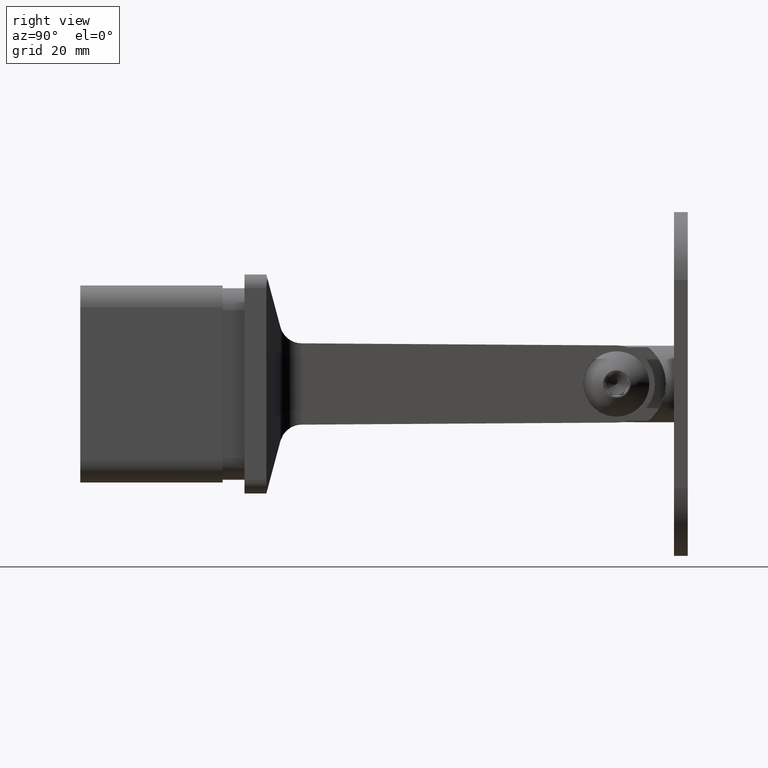
[diagram: clean part render]
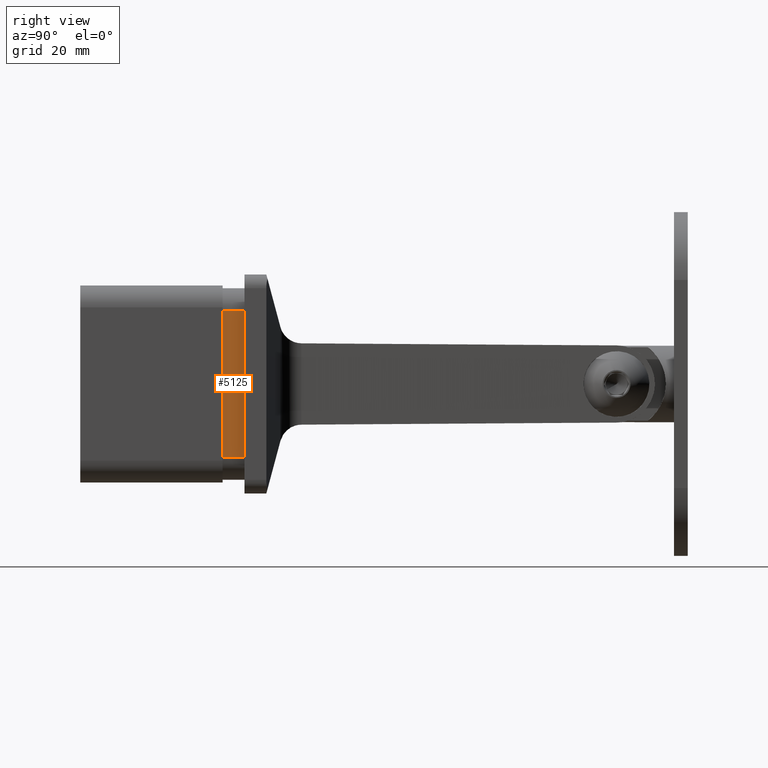
[diagram: same view with one face highlighted and labeled with its STEP entity id]
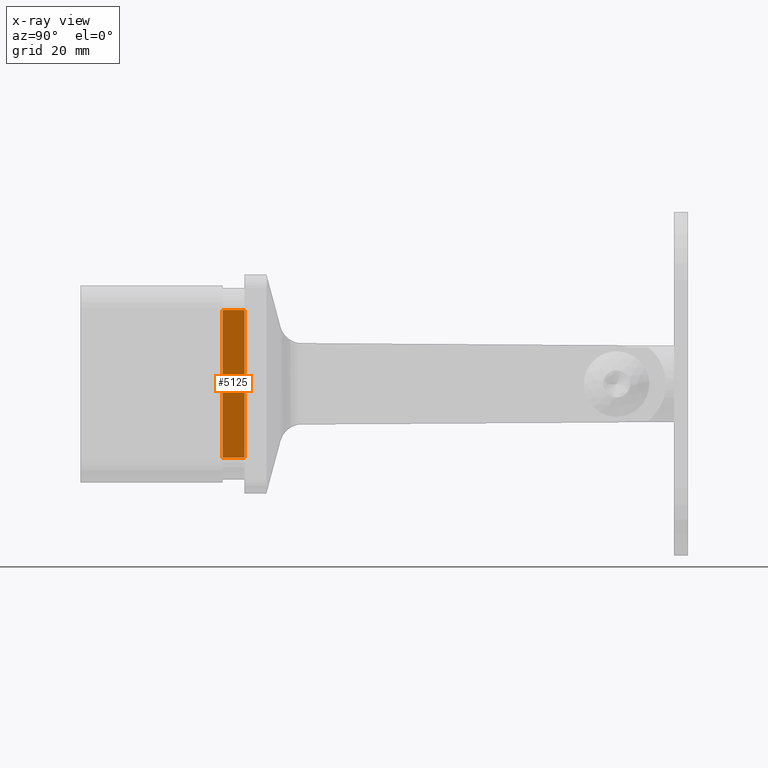
[diagram: x-ray of the same camera — body ghosted, the highlighted face saturated]
A machine part, right view. The second image highlights one B-rep face of the part: STEP entity #5125.
The next image is the same camera in x-ray: the body ghosted, the highlighted face saturated — about 0% of this face is hidden behind the body in this view.
In plain terms, the highlighted planar face has unit normal (-1, 0, 0).
Its self-contained STEP definition (entity closure, byte-faithful):
#188 = EDGE_LOOP ( 'NONE', ( #299, #14790, #12271, #11589 ) ) ;
#299 = ORIENTED_EDGE ( 'NONE', *, *, #8229, .F. ) ;
#420 = VERTEX_POINT ( 'NONE', #1144 ) ;
#468 = LINE ( 'NONE', #7176, #10336 ) ;
#780 = VERTEX_POINT ( 'NONE', #8649 ) ;
#1043 = AXIS2_PLACEMENT_3D ( 'NONE', #4888, #11399, #10453 ) ;
#1144 = CARTESIAN_POINT ( 'NONE',  ( 17.49999999999999645, -4.000000000000000000, -13.49999999999999822 ) ) ;
#1166 = LINE ( 'NONE', #6753, #10658 ) ;
#2328 = VERTEX_POINT ( 'NONE', #11995 ) ;
#4888 = CARTESIAN_POINT ( 'NONE',  ( 17.49999999999999645, -4.000000000000000000, 17.50000000000000711 ) ) ;
#5125 = ADVANCED_FACE ( 'NONE', ( #7493 ), #13083, .F. ) ;
#5514 = CARTESIAN_POINT ( 'NONE',  ( 17.49999999999999645, -4.000000000000000000, -13.49999999999999822 ) ) ;
#5808 = EDGE_CURVE ( 'NONE', #2328, #12809, #468, .T. ) ;
#6146 = VECTOR ( 'NONE', #7784, 1000.000000000000000 ) ;
#6459 = CARTESIAN_POINT ( 'NONE',  ( 17.49999999999999645, -4.000000000000000000, 17.50000000000000711 ) ) ;
#6753 = CARTESIAN_POINT ( 'NONE',  ( 17.49999999999999645, -4.000000000000000000, 13.50000000000000888 ) ) ;
#7176 = CARTESIAN_POINT ( 'NONE',  ( 17.49999999999999645, -0.000000000000000000, 17.50000000000000711 ) ) ;
#7493 = FACE_OUTER_BOUND ( 'NONE', #188, .T. ) ;
#7784 = DIRECTION ( 'NONE',  ( 0.000000000000000000, 1.000000000000000000, 0.000000000000000000 ) ) ;
#7785 = CARTESIAN_POINT ( 'NONE',  ( 17.49999999999999645, 0.000000000000000000, 13.50000000000000888 ) ) ;
#7878 = EDGE_CURVE ( 'NONE', #12809, #780, #1166, .T. ) ;
#8229 = EDGE_CURVE ( 'NONE', #420, #780, #10805, .T. ) ;
#8649 = CARTESIAN_POINT ( 'NONE',  ( 17.49999999999999645, -4.000000000000000000, 13.50000000000000888 ) ) ;
#9670 = DIRECTION ( 'NONE',  ( -0.000000000000000000, -1.000000000000000000, -0.000000000000000000 ) ) ;
#10336 = VECTOR ( 'NONE', #14514, 1000.000000000000000 ) ;
#10453 = DIRECTION ( 'NONE',  ( -0.000000000000000000, 0.000000000000000000, 1.000000000000000000 ) ) ;
#10643 = VECTOR ( 'NONE', #11153, 1000.000000000000000 ) ;
#10658 = VECTOR ( 'NONE', #9670, 1000.000000000000000 ) ;
#10805 = LINE ( 'NONE', #6459, #10643 ) ;
#11050 = LINE ( 'NONE', #5514, #6146 ) ;
#11153 = DIRECTION ( 'NONE',  ( -0.000000000000000000, -0.000000000000000000, 1.000000000000000000 ) ) ;
#11399 = DIRECTION ( 'NONE',  ( -1.000000000000000000, 0.000000000000000000, -0.000000000000000000 ) ) ;
#11589 = ORIENTED_EDGE ( 'NONE', *, *, #7878, .T. ) ;
#11995 = CARTESIAN_POINT ( 'NONE',  ( 17.49999999999999645, 0.000000000000000000, -13.49999999999999822 ) ) ;
#12271 = ORIENTED_EDGE ( 'NONE', *, *, #5808, .T. ) ;
#12809 = VERTEX_POINT ( 'NONE', #7785 ) ;
#13083 = PLANE ( 'NONE',  #1043 ) ;
#14514 = DIRECTION ( 'NONE',  ( -0.000000000000000000, -0.000000000000000000, 1.000000000000000000 ) ) ;
#14790 = ORIENTED_EDGE ( 'NONE', *, *, #15448, .T. ) ;
#15448 = EDGE_CURVE ( 'NONE', #420, #2328, #11050, .T. ) ;